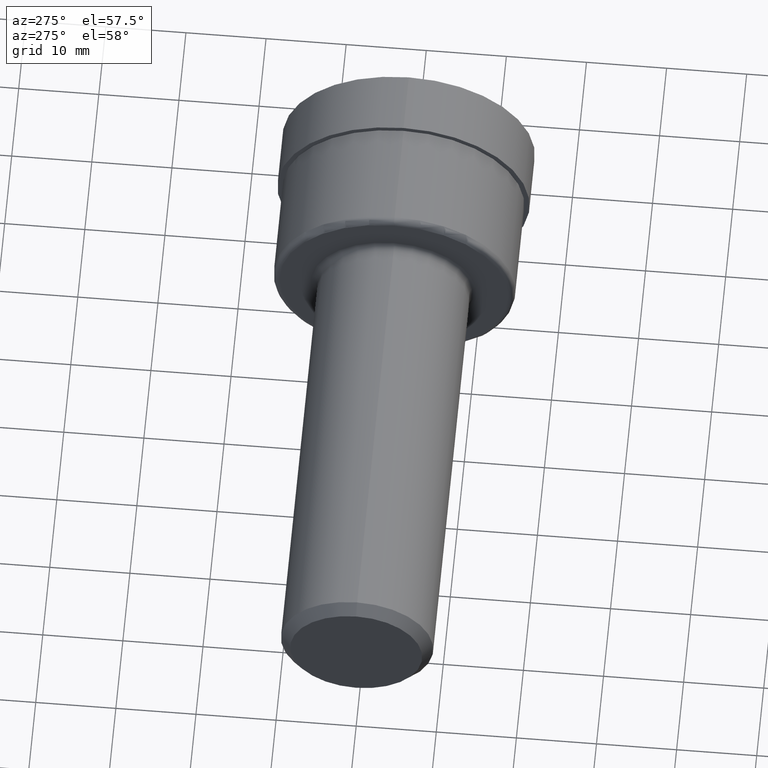
[diagram: clean part render]
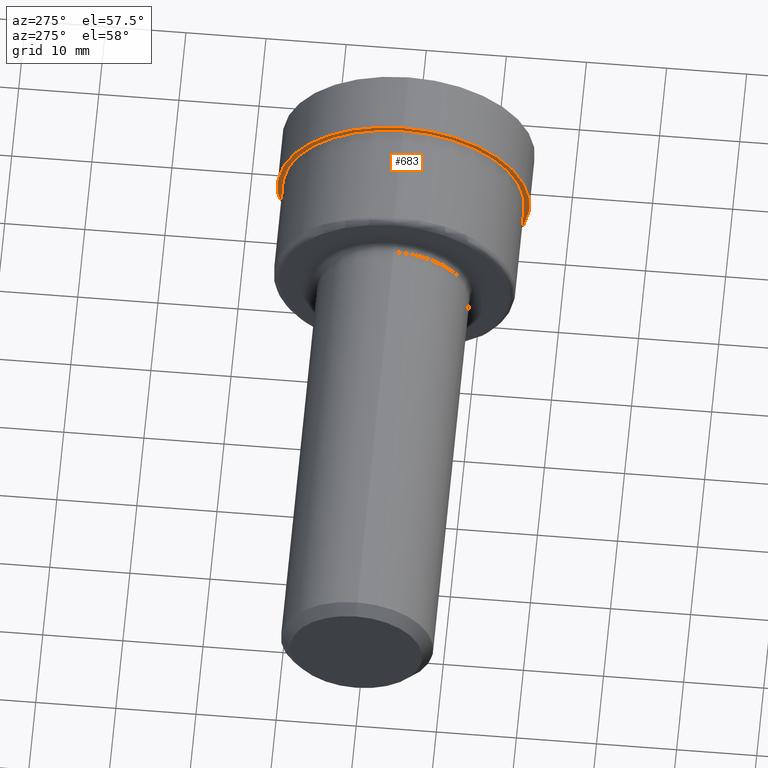
[diagram: same view with one face highlighted and labeled with its STEP entity id]
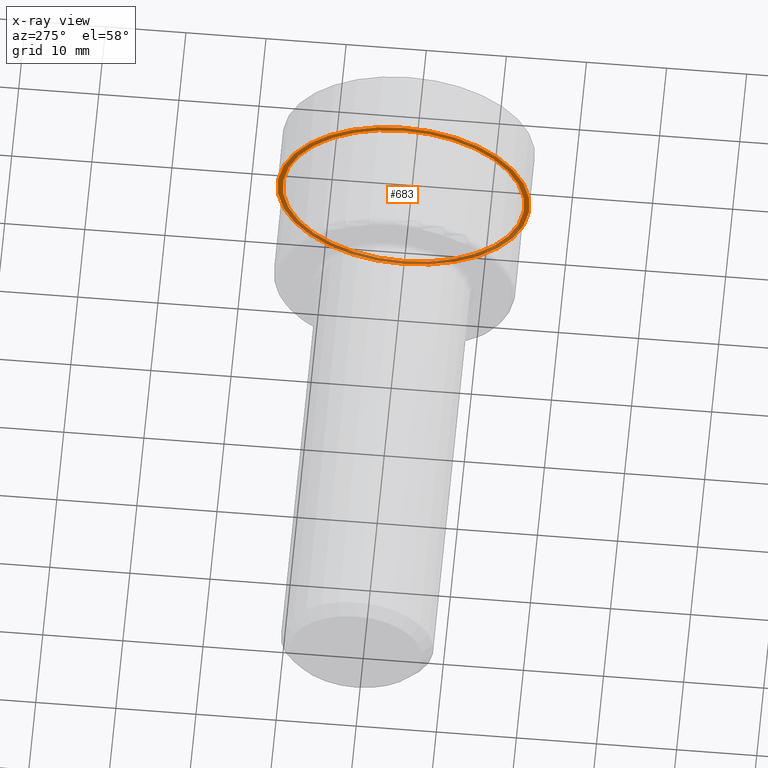
[diagram: x-ray of the same camera — body ghosted, the highlighted face saturated]
A machine part, auxiliary view. The second image highlights one B-rep face of the part: STEP entity #683.
The next image is the same camera in x-ray: the body ghosted, the highlighted face saturated — about 41% of this face is hidden behind the body in this view.
In plain terms, the highlighted planar face has unit normal (1, 0, 0).
Its self-contained STEP definition (entity closure, byte-faithful):
#29 = CARTESIAN_POINT ( 'NONE',  ( 2.657999999999999918, 0.000000000000000000, 0.000000000000000000 ) ) ;
#66 = DIRECTION ( 'NONE',  ( 0.000000000000000000, 0.000000000000000000, 1.000000000000000000 ) ) ;
#74 = CARTESIAN_POINT ( 'NONE',  ( 2.657999999999999918, 0.000000000000000000, 0.6199999999999999956 ) ) ;
#78 = FACE_BOUND ( 'NONE', #241, .T. ) ;
#87 = VERTEX_POINT ( 'NONE', #442 ) ;
#92 = CARTESIAN_POINT ( 'NONE',  ( 2.657999999999999918, 0.000000000000000000, 0.000000000000000000 ) ) ;
#135 = DIRECTION ( 'NONE',  ( 0.000000000000000000, 0.000000000000000000, -1.000000000000000000 ) ) ;
#138 = DIRECTION ( 'NONE',  ( -1.000000000000000000, -0.000000000000000000, -0.000000000000000000 ) ) ;
#159 = CIRCLE ( 'NONE', #631, 0.5939999999999999725 ) ;
#211 = CIRCLE ( 'NONE', #480, 0.6199999999999999956 ) ;
#213 = DIRECTION ( 'NONE',  ( 0.000000000000000000, 0.000000000000000000, 1.000000000000000000 ) ) ;
#220 = DIRECTION ( 'NONE',  ( 0.000000000000000000, 0.000000000000000000, 1.000000000000000000 ) ) ;
#223 = DIRECTION ( 'NONE',  ( -1.000000000000000000, -0.000000000000000000, -0.000000000000000000 ) ) ;
#236 = EDGE_CURVE ( 'NONE', #677, #87, #329, .T. ) ;
#237 = CIRCLE ( 'NONE', #409, 0.5939999999999999725 ) ;
#241 = EDGE_LOOP ( 'NONE', ( #544, #338 ) ) ;
#290 = VERTEX_POINT ( 'NONE', #545 ) ;
#302 = FACE_OUTER_BOUND ( 'NONE', #351, .T. ) ;
#329 = CIRCLE ( 'NONE', #417, 0.6199999999999999956 ) ;
#338 = ORIENTED_EDGE ( 'NONE', *, *, #401, .F. ) ;
#351 = EDGE_LOOP ( 'NONE', ( #433, #359 ) ) ;
#357 = DIRECTION ( 'NONE',  ( 0.000000000000000000, 0.000000000000000000, 1.000000000000000000 ) ) ;
#359 = ORIENTED_EDGE ( 'NONE', *, *, #681, .T. ) ;
#401 = EDGE_CURVE ( 'NONE', #290, #667, #237, .T. ) ;
#407 = PLANE ( 'NONE',  #411 ) ;
#409 = AXIS2_PLACEMENT_3D ( 'NONE', #485, #223, #220 ) ;
#411 = AXIS2_PLACEMENT_3D ( 'NONE', #613, #556, #135 ) ;
#417 = AXIS2_PLACEMENT_3D ( 'NONE', #635, #687, #357 ) ;
#422 = EDGE_CURVE ( 'NONE', #667, #290, #159, .T. ) ;
#433 = ORIENTED_EDGE ( 'NONE', *, *, #236, .T. ) ;
#441 = CARTESIAN_POINT ( 'NONE',  ( 2.657999999999999918, 0.000000000000000000, 0.5939999999999999725 ) ) ;
#442 = CARTESIAN_POINT ( 'NONE',  ( 2.657999999999999918, 7.592810154713589096E-17, -0.6199999999999999956 ) ) ;
#472 = DIRECTION ( 'NONE',  ( -1.000000000000000000, -0.000000000000000000, -0.000000000000000000 ) ) ;
#480 = AXIS2_PLACEMENT_3D ( 'NONE', #29, #138, #66 ) ;
#485 = CARTESIAN_POINT ( 'NONE',  ( 2.657999999999999918, 0.000000000000000000, 0.000000000000000000 ) ) ;
#544 = ORIENTED_EDGE ( 'NONE', *, *, #422, .F. ) ;
#545 = CARTESIAN_POINT ( 'NONE',  ( 2.657999999999999918, 7.274401986935277967E-17, -0.5939999999999999725 ) ) ;
#556 = DIRECTION ( 'NONE',  ( 1.000000000000000000, 0.000000000000000000, 0.000000000000000000 ) ) ;
#613 = CARTESIAN_POINT ( 'NONE',  ( 2.657999999999999918, 0.5939999999999999725, 0.000000000000000000 ) ) ;
#631 = AXIS2_PLACEMENT_3D ( 'NONE', #92, #472, #213 ) ;
#635 = CARTESIAN_POINT ( 'NONE',  ( 2.657999999999999918, 0.000000000000000000, 0.000000000000000000 ) ) ;
#667 = VERTEX_POINT ( 'NONE', #441 ) ;
#677 = VERTEX_POINT ( 'NONE', #74 ) ;
#681 = EDGE_CURVE ( 'NONE', #87, #677, #211, .T. ) ;
#683 = ADVANCED_FACE ( 'NONE', ( #78, #302 ), #407, .F. ) ;
#687 = DIRECTION ( 'NONE',  ( -1.000000000000000000, -0.000000000000000000, -0.000000000000000000 ) ) ;